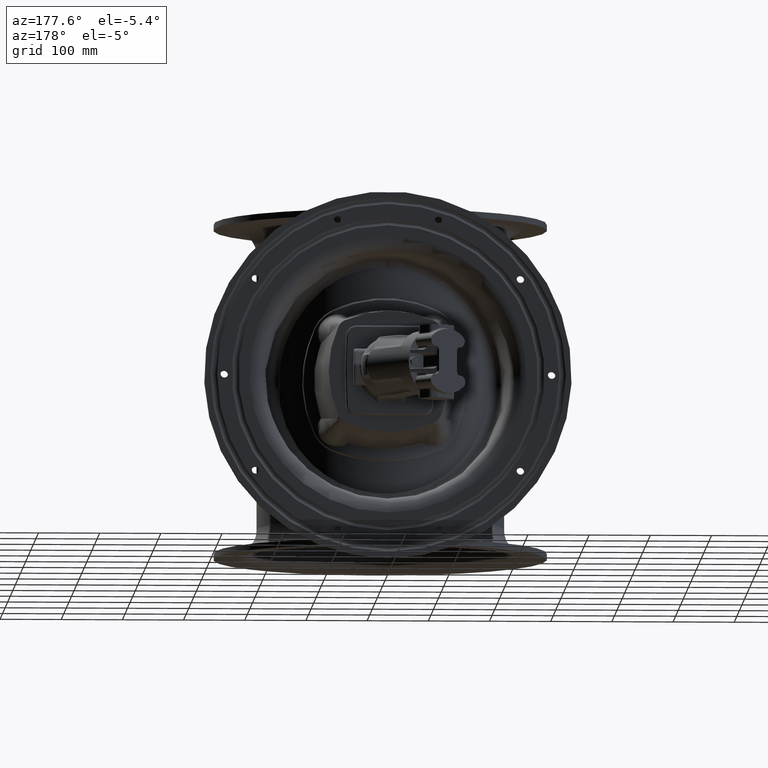
[diagram: clean part render]
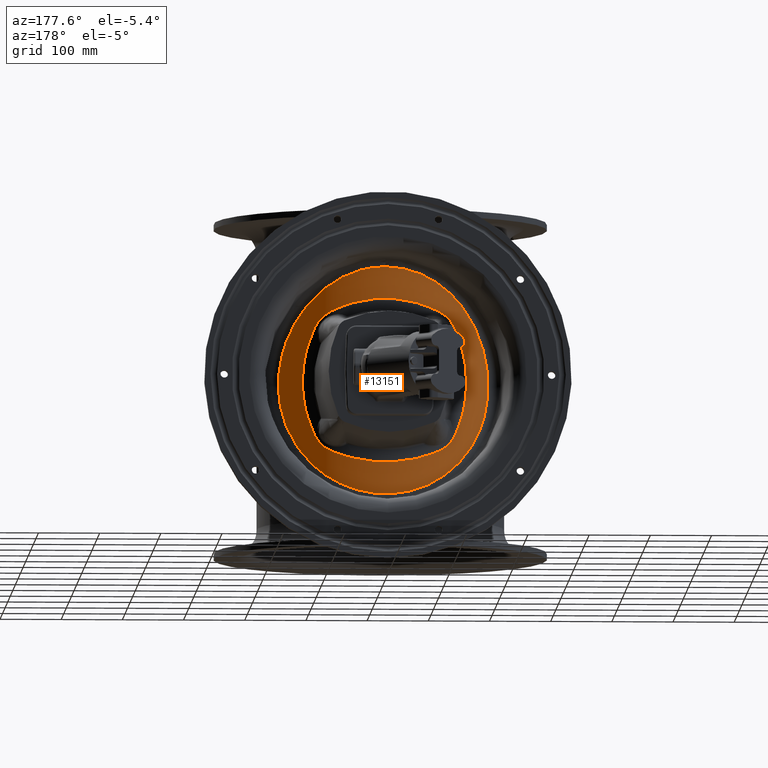
[diagram: same view with one face highlighted and labeled with its STEP entity id]
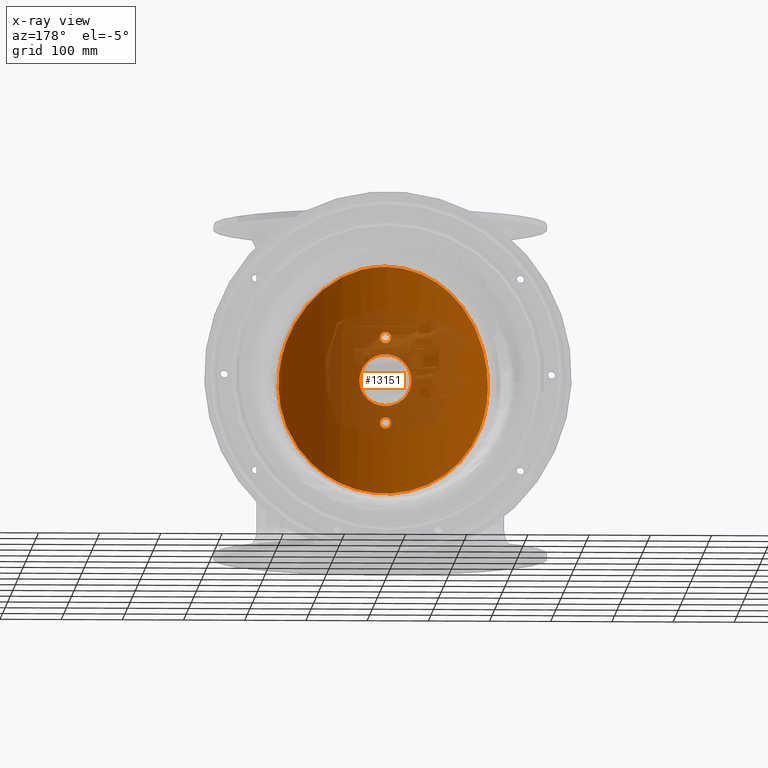
[diagram: x-ray of the same camera — body ghosted, the highlighted face saturated]
A machine part, auxiliary view. The second image highlights one B-rep face of the part: STEP entity #13151.
The next image is the same camera in x-ray: the body ghosted, the highlighted face saturated — about 34% of this face is hidden behind the body in this view.
In plain terms, the highlighted cylindrical surface (partial cylindrical patch) has radius 207 mm, axis along (-0, 0, -1).
Its self-contained STEP definition (entity closure, byte-faithful):
#753=CYLINDRICAL_SURFACE('',#14260,207.);
#825=FACE_BOUND('',#3331,.T.);
#826=FACE_BOUND('',#3332,.T.);
#827=FACE_BOUND('',#3333,.T.);
#1645=B_SPLINE_CURVE_WITH_KNOTS('',3,(#55963,#55964,#55965,#55966,#55967,
#55968,#55969,#55970,#55971,#55972,#55973,#55974,#55975,#55976,#55977,#55978,
#55979,#55980,#55981,#55982,#55983,#55984,#55985,#55986,#55987,#55988,#55989,
#55990,#55991,#55992,#55993,#55994,#55995,#55996,#55997,#55998,#55999,#56000,
#56001,#56002,#56003,#56004,#56005,#56006,#56007,#56008,#56009,#56010,#56011,
#56012,#56013,#56014,#56015,#56016,#56017,#56018,#56019,#56020,#56021,#56022,
#56023,#56024,#56025,#56026,#56027,#56028,#56029,#56030,#56031,#56032,#56033,
#56034,#56035,#56036,#56037,#56038,#56039),.UNSPECIFIED.,.T.,.F.,(4,1,1,
1,1,1,1,1,1,1,1,1,1,1,1,1,1,1,1,1,1,1,1,1,1,1,1,1,1,1,1,1,1,1,1,1,1,1,1,
1,1,1,1,1,1,1,1,1,1,1,1,1,1,1,1,1,1,1,1,1,1,1,1,1,1,1,1,1,1,1,1,1,1,1,4),
(-183.789862350285,-180.507990159418,-179.41400234027,-177.226026701974,
-175.038051063678,-173.397069334956,-172.850075425382,-170.662099787086,
-168.47412414879,-166.833142420068,-166.286148510494,-164.341281276453,
-162.396414042412,-161.667088829647,-160.451546808371,-158.50667957433,
-156.561812340289,-155.103161914759,-154.616945106249,-153.158294680718,
-151.699644255187,-151.334981648805,-150.240993829657,-148.782343404126,
-145.865042553065,-145.500379946682,-144.406392127534,-142.947741702003,
-140.030440850942,-138.936453031794,-138.571790425412,-136.14070638286,
-135.16827276584,-133.709622340309,-131.278538297758,-130.306104680738,
-127.388803829677,-125.443936595636,-123.25596095734,-122.526635744574,
-119.609334893513,-116.692034042452,-114.504058404156,-113.774733191391,
-112.31608276586,-110.857432340329,-110.128107127564,-107.940131489268,
-105.022830638207,-102.105529787145,-100.282216755232,-99.188228936084,
-96.2709280850227,-95.7239341754488,-94.0829524467268,-92.4419707180048,
-91.8949768084308,-89.7070011701348,-87.5190255318389,-86.6985346674779,
-86.4250377126909,-85.3310498935429,-83.1430742552469,-81.5020925265249,
-80.9550986169509,-78.767122978655,-76.579147340359,-74.938165611637,-74.391171702063,
-72.2031960637671,-70.0152204254711,-68.9212326063231,-66.7332569680271,
-65.6392691488792,-61.2632266057103),.UNSPECIFIED.);
#1646=B_SPLINE_CURVE_WITH_KNOTS('',3,(#56045,#56046,#56047,#56048,#56049,
#56050,#56051,#56052,#56053,#56054,#56055,#56056,#56057,#56058,#56059,#56060,
#56061,#56062,#56063,#56064,#56065,#56066,#56067,#56068,#56069,#56070,#56071,
#56072,#56073,#56074,#56075,#56076,#56077,#56078),.UNSPECIFIED.,.T.,.F.,
(4,2,2,2,2,2,2,2,2,2,2,2,2,2,2,2,4),(-5.42502185536125,-5.08595796893677,
-4.7468940825123,-4.40783023701661,-4.06876639152093,-3.72970254602525,
-3.39063870052957,-3.05157481410509,-2.71251092768062,-2.37344704125615,
-2.03438315483167,-1.69531930933599,-1.35625546384031,-1.01719161834463,
-0.678127772848948,-0.339063886424474,0.),.UNSPECIFIED.);
#1647=B_SPLINE_CURVE_WITH_KNOTS('',3,(#56080,#56081,#56082,#56083,#56084,
#56085,#56086,#56087,#56088,#56089,#56090,#56091,#56092,#56093,#56094,#56095,
#56096,#56097,#56098,#56099,#56100,#56101,#56102,#56103,#56104,#56105,#56106,
#56107,#56108,#56109,#56110,#56111,#56112,#56113),.UNSPECIFIED.,.T.,.F.,
(4,2,2,2,2,2,2,2,2,2,2,2,2,2,2,2,4),(-5.42502185536125,-5.08595796893677,
-4.7468940825123,-4.40783023701661,-4.06876639152093,-3.72970254602525,
-3.39063870052957,-3.05157481410509,-2.71251092768062,-2.37344704125615,
-2.03438315483167,-1.69531930933599,-1.35625546384031,-1.01719161834463,
-0.678127772848948,-0.339063886424474,0.),.UNSPECIFIED.);
#1648=B_SPLINE_CURVE_WITH_KNOTS('',3,(#56115,#56116,#56117,#56118,#56119,
#56120,#56121,#56122,#56123,#56124,#56125,#56126,#56127,#56128,#56129,#56130,
#56131,#56132,#56133,#56134,#56135,#56136,#56137,#56138,#56139,#56140,#56141,
#56142,#56143,#56144,#56145,#56146,#56147,#56148,#56149,#56150,#56151,#56152,
#56153,#56154,#56155,#56156,#56157,#56158,#56159,#56160,#56161,#56162,#56163,
#56164,#56165,#56166,#56167,#56168,#56169,#56170,#56171,#56172,#56173,#56174,
#56175,#56176,#56177,#56178,#56179,#56180),.UNSPECIFIED.,.T.,.F.,(4,2,2,
2,2,2,2,2,2,2,2,2,2,2,2,2,2,2,2,2,2,2,2,2,2,2,2,2,2,2,2,2,4),(-25.6934622714119,
-24.8905165393412,-24.0875708072705,-23.2846250751998,-22.4816793431291,
-21.6787836832366,-20.875888023344,-20.0729923634515,-19.2700967035589,
-18.4672010436664,-17.6643053837738,-16.8614097238813,-16.0585140639887,
-15.255568331918,-14.4526225998473,-13.6496768677766,-12.8467311357059,
-12.0437854036352,-11.2408396715646,-10.4378939394939,-9.63494820742316,
-8.83205254753061,-8.02915688763807,-7.22626122774552,-6.42336556785297,
-5.62046990796042,-4.81757424806788,-4.01467858817533,-3.21178292828278,
-2.40883719621209,-1.60589146414139,-0.802945732070695,0.),
 .UNSPECIFIED.);
#2447=FACE_OUTER_BOUND('',#3330,.T.);
#3330=EDGE_LOOP('',(#11365));
#3331=EDGE_LOOP('',(#11366));
#3332=EDGE_LOOP('',(#11367));
#3333=EDGE_LOOP('',(#11368));
#5870=VERTEX_POINT('',#55880);
#5873=VERTEX_POINT('',#56044);
#5874=VERTEX_POINT('',#56079);
#5875=VERTEX_POINT('',#56114);
#7722=EDGE_CURVE('',#5870,#5870,#1645,.T.);
#7724=EDGE_CURVE('',#5873,#5873,#1646,.T.);
#7725=EDGE_CURVE('',#5874,#5874,#1647,.T.);
#7726=EDGE_CURVE('',#5875,#5875,#1648,.T.);
#11365=ORIENTED_EDGE('',*,*,#7722,.F.);
#11366=ORIENTED_EDGE('',*,*,#7724,.T.);
#11367=ORIENTED_EDGE('',*,*,#7725,.T.);
#11368=ORIENTED_EDGE('',*,*,#7726,.T.);
#13151=ADVANCED_FACE('',(#2447,#825,#826,#827),#753,.T.);
#14260=AXIS2_PLACEMENT_3D('',#56043,#16819,#16820);
#16819=DIRECTION('center_axis',(-3.12250225675821E-16,2.4995738599939E-16,
-1.));
#16820=DIRECTION('ref_axis',(-4.17516537684347E-17,1.,2.4995738599939E-16));
#55880=CARTESIAN_POINT('',(4.0224161918184,110.00673804142,186.102400270656));
#55963=CARTESIAN_POINT('Ctrl Pts',(4.0224165284216,110.007573262003,186.102400377492));
#55964=CARTESIAN_POINT('Ctrl Pts',(-6.32604251172537,110.012385134042,186.109490105105));
#55965=CARTESIAN_POINT('Ctrl Pts',(-20.1340109155538,108.971983298553,184.759599117751));
#55966=CARTESIAN_POINT('Ctrl Pts',(-40.0802820961297,105.475179817484,180.181597701004));
#55967=CARTESIAN_POINT('Ctrl Pts',(-56.2013248258171,101.416852400042,174.831114358129));
#55968=CARTESIAN_POINT('Ctrl Pts',(-72.8682464590129,95.4808825197108,166.881804333555));
#55969=CARTESIAN_POINT('Ctrl Pts',(-84.0433715473066,90.4745997747385,160.040526733479));
#55970=CARTESIAN_POINT('Ctrl Pts',(-94.6858026157521,85.1513561997405,152.659173028407));
#55971=CARTESIAN_POINT('Ctrl Pts',(-106.010929702443,78.6902163655095,143.536807153365));
#55972=CARTESIAN_POINT('Ctrl Pts',(-118.439955589605,70.180768080616,131.016588218477));
#55973=CARTESIAN_POINT('Ctrl Pts',(-126.548192018502,63.7958573199084,121.146459386261));
#55974=CARTESIAN_POINT('Ctrl Pts',(-133.676336174221,57.7595711109299,111.472619589213));
#55975=CARTESIAN_POINT('Ctrl Pts',(-140.702609786857,51.2922472975345,100.652950091003));
#55976=CARTESIAN_POINT('Ctrl Pts',(-147.075743469184,44.6972372038763,88.5533268097693));
#55977=CARTESIAN_POINT('Ctrl Pts',(-151.841539663016,39.4021616613449,77.9274276494077));
#55978=CARTESIAN_POINT('Ctrl Pts',(-156.164759008194,34.3458222552748,66.99130819298));
#55979=CARTESIAN_POINT('Ctrl Pts',(-160.869851423268,28.388478201804,51.9431479435619));
#55980=CARTESIAN_POINT('Ctrl Pts',(-164.459894402138,23.4722827194567,35.2371650157748));
#55981=CARTESIAN_POINT('Ctrl Pts',(-166.108458049782,21.1080453942121,22.5959872248299));
#55982=CARTESIAN_POINT('Ctrl Pts',(-167.038645718237,19.7568512323813,11.3686973803495));
#55983=CARTESIAN_POINT('Ctrl Pts',(-167.442621296914,19.1595858478805,0.0199647011556278));
#55984=CARTESIAN_POINT('Ctrl Pts',(-167.056317273498,19.7305221400587,-10.9222541376921));
#55985=CARTESIAN_POINT('Ctrl Pts',(-166.290315568963,20.8445361491775,-20.5555983181781));
#55986=CARTESIAN_POINT('Ctrl Pts',(-165.193122779023,22.4231950159818,-30.0766497023872));
#55987=CARTESIAN_POINT('Ctrl Pts',(-162.097635931742,26.7515662347246,-47.4921014483732));
#55988=CARTESIAN_POINT('Ctrl Pts',(-157.953538271203,32.1581556923922,-61.8241698000337));
#55989=CARTESIAN_POINT('Ctrl Pts',(-153.306615376738,37.6942145818503,-74.2834933594923));
#55990=CARTESIAN_POINT('Ctrl Pts',(-149.966878337683,41.5378260004362,-82.3868645211918));
#55991=CARTESIAN_POINT('Ctrl Pts',(-142.876060213148,49.1723891469854,-97.0459845878739));
#55992=CARTESIAN_POINT('Ctrl Pts',(-134.414207880831,57.2326993866282,-110.732570434365));
#55993=CARTESIAN_POINT('Ctrl Pts',(-126.69510887119,63.6432719086797,-120.901276449434));
#55994=CARTESIAN_POINT('Ctrl Pts',(-119.524653127709,69.3020702057684,-129.679401846483));
#55995=CARTESIAN_POINT('Ctrl Pts',(-112.061109038304,74.6516926276183,-137.651994025593));
#55996=CARTESIAN_POINT('Ctrl Pts',(-101.481461001043,81.2612403116373,-147.182889642459));
#55997=CARTESIAN_POINT('Ctrl Pts',(-90.2257014995973,87.5976829859991,-156.121532145824));
#55998=CARTESIAN_POINT('Ctrl Pts',(-77.9960729483707,93.315401597678,-163.95961545583));
#55999=CARTESIAN_POINT('Ctrl Pts',(-61.0512161415954,99.8147092612429,-172.724471816137));
#56000=CARTESIAN_POINT('Ctrl Pts',(-44.2988425744459,104.736192753559,-179.239143530399));
#56001=CARTESIAN_POINT('Ctrl Pts',(-22.8561718535026,108.573589631185,-184.261149843074));
#56002=CARTESIAN_POINT('Ctrl Pts',(-7.59779743737779,109.853235536573,-185.92502318711));
#56003=CARTESIAN_POINT('Ctrl Pts',(10.7914025452992,110.160889568586,-186.324769763917));
#56004=CARTESIAN_POINT('Ctrl Pts',(31.4847098326652,108.768284717404,-184.517152672549));
#56005=CARTESIAN_POINT('Ctrl Pts',(55.7077355505244,103.864286338373,-178.098487259672));
#56006=CARTESIAN_POINT('Ctrl Pts',(72.235002666567,98.5485568041008,-171.021508322575));
#56007=CARTESIAN_POINT('Ctrl Pts',(83.9108709223713,93.9944676935401,-164.870181648617));
#56008=CARTESIAN_POINT('Ctrl Pts',(93.2358082967724,89.8650709465221,-159.232359076921));
#56009=CARTESIAN_POINT('Ctrl Pts',(102.049469063887,85.3281222099376,-152.92241352319));
#56010=CARTESIAN_POINT('Ctrl Pts',(112.118969753239,79.5996672902062,-144.817684684591));
#56011=CARTESIAN_POINT('Ctrl Pts',(124.621676831026,71.5122788720713,-133.090999073236));
#56012=CARTESIAN_POINT('Ctrl Pts',(139.439461765715,59.8669317845629,-115.208156488897));
#56013=CARTESIAN_POINT('Ctrl Pts',(151.271076395006,48.5991225177312,-96.0684441957009));
#56014=CARTESIAN_POINT('Ctrl Pts',(158.694460698409,40.5061493717974,-80.3633452782445));
#56015=CARTESIAN_POINT('Ctrl Pts',(165.126452098518,32.9673032217986,-63.9691902748969));
#56016=CARTESIAN_POINT('Ctrl Pts',(169.082557148275,27.8059658393071,-50.282119531139));
#56017=CARTESIAN_POINT('Ctrl Pts',(172.293426459773,23.4040950431469,-34.2633353233298));
#56018=CARTESIAN_POINT('Ctrl Pts',(174.117294664652,20.8050607424317,-21.8741111729169));
#56019=CARTESIAN_POINT('Ctrl Pts',(174.963944792551,19.5612370540617,-9.18114844005462));
#56020=CARTESIAN_POINT('Ctrl Pts',(175.162547527765,19.266800903495,5.41862494284457));
#56021=CARTESIAN_POINT('Ctrl Pts',(174.28772204351,20.5666894890753,21.8249976648889));
#56022=CARTESIAN_POINT('Ctrl Pts',(171.605394907514,24.3841261276658,38.5332024169009));
#56023=CARTESIAN_POINT('Ctrl Pts',(169.226302230867,27.5722827987922,48.6945987452149));
#56024=CARTESIAN_POINT('Ctrl Pts',(167.486516391118,29.852591655361,55.3457095619295));
#56025=CARTESIAN_POINT('Ctrl Pts',(164.355759663599,33.8523455901959,65.9104886469082));
#56026=CARTESIAN_POINT('Ctrl Pts',(159.005255969483,40.2198789810066,79.8935838513798));
#56027=CARTESIAN_POINT('Ctrl Pts',(153.281027553682,46.3559381123048,91.6062242182561));
#56028=CARTESIAN_POINT('Ctrl Pts',(147.010604059193,52.6502936673865,102.919707165201));
#56029=CARTESIAN_POINT('Ctrl Pts',(139.267104288406,59.8367493073025,114.986254931773));
#56030=CARTESIAN_POINT('Ctrl Pts',(128.35093324617,68.6104689317393,128.637720541794));
#56031=CARTESIAN_POINT('Ctrl Pts',(119.461305737736,74.8174265318445,137.838638024432));
#56032=CARTESIAN_POINT('Ctrl Pts',(110.056332493333,80.8260457049505,146.551817505603));
#56033=CARTESIAN_POINT('Ctrl Pts',(98.7931015601091,87.258517431693,155.634839265762));
#56034=CARTESIAN_POINT('Ctrl Pts',(84.9932123152571,93.6386755069081,164.37512140766));
#56035=CARTESIAN_POINT('Ctrl Pts',(70.2316027428183,99.2710546730763,171.966728363719));
#56036=CARTESIAN_POINT('Ctrl Pts',(57.8285120447435,103.046201024236,176.980928365641));
#56037=CARTESIAN_POINT('Ctrl Pts',(35.0394925293079,108.233234489744,183.80591318674));
#56038=CARTESIAN_POINT('Ctrl Pts',(17.8210338501805,110.001157622682,186.092947262467));
#56039=CARTESIAN_POINT('Ctrl Pts',(4.0224165284216,110.007573262003,186.102400377492));
#56043=CARTESIAN_POINT('Origin',(3.89657678097515,-96.9938597725139,-5.4166496496217));
#56044=CARTESIAN_POINT('',(12.8965767809752,109.810395502855,69.9885562203831));
#56045=CARTESIAN_POINT('Ctrl Pts',(12.8965767809752,109.810395502855,69.9885562203831));
#56046=CARTESIAN_POINT('Ctrl Pts',(12.8965767809752,109.810395502855,71.1187691751313));
#56047=CARTESIAN_POINT('Ctrl Pts',(12.6706742981768,109.820613794501,72.3242189173106));
#56048=CARTESIAN_POINT('Ctrl Pts',(11.7521470335531,109.857539255573,74.541590778144));
#56049=CARTESIAN_POINT('Ctrl Pts',(11.0595301020676,109.883715359163,75.5535249606486));
#56050=CARTESIAN_POINT('Ctrl Pts',(9.46154561768794,109.932866665458,77.1515094450282));
#56051=CARTESIAN_POINT('Ctrl Pts',(8.44961139047015,109.959031970773,77.8441264470768));
#56052=CARTESIAN_POINT('Ctrl Pts',(6.23223939207273,109.99593274206,78.7626537775929));
#56053=CARTESIAN_POINT('Ctrl Pts',(5.02678959929411,110.006140227486,78.9885562203831));
#56054=CARTESIAN_POINT('Ctrl Pts',(2.76636396265623,110.006140227486,78.9885562203831));
#56055=CARTESIAN_POINT('Ctrl Pts',(1.5609141698776,109.99593274206,78.762653777593));
#56056=CARTESIAN_POINT('Ctrl Pts',(-0.656457828519809,109.959031970773,
77.8441264470768));
#56057=CARTESIAN_POINT('Ctrl Pts',(-1.6683920557376,109.932866665458,77.1515094450282));
#56058=CARTESIAN_POINT('Ctrl Pts',(-3.26637654011721,109.883715359163,75.5535249606486));
#56059=CARTESIAN_POINT('Ctrl Pts',(-3.9589934716028,109.857539255573,74.541590778144));
#56060=CARTESIAN_POINT('Ctrl Pts',(-4.87752073622649,109.8206137945,72.3242189173106));
#56061=CARTESIAN_POINT('Ctrl Pts',(-5.10342321902483,109.810395502855,71.1187691751313));
#56062=CARTESIAN_POINT('Ctrl Pts',(-5.10342321902483,109.810395502855,68.8583432656348));
#56063=CARTESIAN_POINT('Ctrl Pts',(-4.87752073622649,109.820613794501,67.6528935234555));
#56064=CARTESIAN_POINT('Ctrl Pts',(-3.95899347160279,109.857539255573,65.4355216626221));
#56065=CARTESIAN_POINT('Ctrl Pts',(-3.2663765401172,109.883715359164,64.4235874801176));
#56066=CARTESIAN_POINT('Ctrl Pts',(-1.66839205573759,109.932866665458,62.825602995738));
#56067=CARTESIAN_POINT('Ctrl Pts',(-0.656457828519807,109.959031970773,
62.1329859936894));
#56068=CARTESIAN_POINT('Ctrl Pts',(1.5609141698776,109.99593274206,61.2144586631732));
#56069=CARTESIAN_POINT('Ctrl Pts',(2.76636396265623,110.006140227486,60.9885562203831));
#56070=CARTESIAN_POINT('Ctrl Pts',(5.02678959929411,110.006140227486,60.9885562203831));
#56071=CARTESIAN_POINT('Ctrl Pts',(6.23223939207272,109.99593274206,61.2144586631732));
#56072=CARTESIAN_POINT('Ctrl Pts',(8.44961139047014,109.959031970773,62.1329859936894));
#56073=CARTESIAN_POINT('Ctrl Pts',(9.46154561768792,109.932866665458,62.825602995738));
#56074=CARTESIAN_POINT('Ctrl Pts',(11.0595301020675,109.883715359164,64.4235874801176));
#56075=CARTESIAN_POINT('Ctrl Pts',(11.7521470335531,109.857539255573,65.4355216626221));
#56076=CARTESIAN_POINT('Ctrl Pts',(12.6706742981768,109.820613794501,67.6528935234555));
#56077=CARTESIAN_POINT('Ctrl Pts',(12.8965767809752,109.810395502855,68.8583432656348));
#56078=CARTESIAN_POINT('Ctrl Pts',(12.8965767809752,109.810395502855,69.9885562203831));
#56079=CARTESIAN_POINT('',(12.8965767809751,109.810395502855,-70.0114437796169));
#56080=CARTESIAN_POINT('Ctrl Pts',(12.8965767809751,109.810395502855,-70.0114437796169));
#56081=CARTESIAN_POINT('Ctrl Pts',(12.8965767809751,109.810395502855,-68.8812308248687));
#56082=CARTESIAN_POINT('Ctrl Pts',(12.6706742981768,109.820613794501,-67.6757810826894));
#56083=CARTESIAN_POINT('Ctrl Pts',(11.7521470335531,109.857539255573,-65.458409221856));
#56084=CARTESIAN_POINT('Ctrl Pts',(11.0595301020675,109.883715359164,-64.4464750393514));
#56085=CARTESIAN_POINT('Ctrl Pts',(9.46154561768789,109.932866665458,-62.8484905549718));
#56086=CARTESIAN_POINT('Ctrl Pts',(8.4496113904701,109.959031970773,-62.1558735529232));
#56087=CARTESIAN_POINT('Ctrl Pts',(6.23223939207269,109.99593274206,-61.237346222407));
#56088=CARTESIAN_POINT('Ctrl Pts',(5.02678959929407,110.006140227486,-61.0114437796169));
#56089=CARTESIAN_POINT('Ctrl Pts',(2.76636396265619,110.006140227486,-61.0114437796169));
#56090=CARTESIAN_POINT('Ctrl Pts',(1.56091416987756,109.99593274206,-61.2373462224071));
#56091=CARTESIAN_POINT('Ctrl Pts',(-0.656457828519857,109.959031970773,
-62.1558735529232));
#56092=CARTESIAN_POINT('Ctrl Pts',(-1.66839205573764,109.932866665458,-62.8484905549718));
#56093=CARTESIAN_POINT('Ctrl Pts',(-3.26637654011725,109.883715359164,-64.4464750393514));
#56094=CARTESIAN_POINT('Ctrl Pts',(-3.95899347160284,109.857539255573,-65.458409221856));
#56095=CARTESIAN_POINT('Ctrl Pts',(-4.87752073622654,109.820613794501,-67.6757810826894));
#56096=CARTESIAN_POINT('Ctrl Pts',(-5.10342321902487,109.810395502855,-68.8812308248687));
#56097=CARTESIAN_POINT('Ctrl Pts',(-5.10342321902487,109.810395502855,-71.1416567343652));
#56098=CARTESIAN_POINT('Ctrl Pts',(-4.87752073622653,109.820613794501,-72.3471064765445));
#56099=CARTESIAN_POINT('Ctrl Pts',(-3.95899347160284,109.857539255573,-74.5644783373779));
#56100=CARTESIAN_POINT('Ctrl Pts',(-3.26637654011725,109.883715359164,-75.5764125198824));
#56101=CARTESIAN_POINT('Ctrl Pts',(-1.66839205573763,109.932866665458,-77.174397004262));
#56102=CARTESIAN_POINT('Ctrl Pts',(-0.656457828519851,109.959031970774,
-77.8670140063106));
#56103=CARTESIAN_POINT('Ctrl Pts',(1.56091416987756,109.99593274206,-78.7855413368268));
#56104=CARTESIAN_POINT('Ctrl Pts',(2.76636396265619,110.006140227486,-79.0114437796169));
#56105=CARTESIAN_POINT('Ctrl Pts',(5.02678959929406,110.006140227486,-79.0114437796169));
#56106=CARTESIAN_POINT('Ctrl Pts',(6.2322393920727,109.99593274206,-78.7855413368268));
#56107=CARTESIAN_POINT('Ctrl Pts',(8.44961139047011,109.959031970774,-77.8670140063106));
#56108=CARTESIAN_POINT('Ctrl Pts',(9.46154561768788,109.932866665458,-77.174397004262));
#56109=CARTESIAN_POINT('Ctrl Pts',(11.0595301020675,109.883715359164,-75.5764125198824));
#56110=CARTESIAN_POINT('Ctrl Pts',(11.7521470335531,109.857539255573,-74.5644783373779));
#56111=CARTESIAN_POINT('Ctrl Pts',(12.6706742981768,109.820613794501,-72.3471064765445));
#56112=CARTESIAN_POINT('Ctrl Pts',(12.8965767809751,109.810395502855,-71.1416567343652));
#56113=CARTESIAN_POINT('Ctrl Pts',(12.8965767809751,109.810395502855,-70.0114437796169));
#56114=CARTESIAN_POINT('',(46.3965767809751,105.596243638289,-0.0114437796169424));
#56115=CARTESIAN_POINT('Ctrl Pts',(46.3965767809751,105.59624363829,-0.0114437796169425));
#56116=CARTESIAN_POINT('Ctrl Pts',(46.3965767809751,105.59624363829,2.66504199395203));
#56117=CARTESIAN_POINT('Ctrl Pts',(46.1396692234171,105.650717504117,5.43042459235758));
#56118=CARTESIAN_POINT('Ctrl Pts',(45.0603404199587,105.872717370327,10.9264423829667));
#56119=CARTESIAN_POINT('Ctrl Pts',(44.2381779009865,106.040072040618,13.6571353009253));
#56120=CARTESIAN_POINT('Ctrl Pts',(42.067215757131,106.459389214785,18.8903341394484));
#56121=CARTESIAN_POINT('Ctrl Pts',(40.7166899977148,106.711275947554,21.3971536704099));
#56122=CARTESIAN_POINT('Ctrl Pts',(37.5987259872364,107.250278931019,26.0310968256378));
#56123=CARTESIAN_POINT('Ctrl Pts',(35.8310706883453,107.536842166065,28.1581387138695));
#56124=CARTESIAN_POINT('Ctrl Pts',(32.0662766655302,108.089263603236,31.9229327366846));
#56125=CARTESIAN_POINT('Ctrl Pts',(29.9392892811008,108.374631060459,33.6905749977822));
#56126=CARTESIAN_POINT('Ctrl Pts',(25.3053117063061,108.909287289991,36.8085917042512));
#56127=CARTESIAN_POINT('Ctrl Pts',(22.7984033230246,109.15805179304,38.1591776027713));
#56128=CARTESIAN_POINT('Ctrl Pts',(17.5650312074931,109.571052643738,40.3302064751636));
#56129=CARTESIAN_POINT('Ctrl Pts',(14.8342564485385,109.735263999979,41.1523752946838));
#56130=CARTESIAN_POINT('Ctrl Pts',(9.33821665244357,109.952877355093,42.2316786524));
#56131=CARTESIAN_POINT('Ctrl Pts',(6.57289564728365,110.006140227486,42.4885562203831));
#56132=CARTESIAN_POINT('Ctrl Pts',(1.22025791466665,110.006140227486,42.4885562203831));
#56133=CARTESIAN_POINT('Ctrl Pts',(-1.54506309049327,109.952877355093,42.2316786524));
#56134=CARTESIAN_POINT('Ctrl Pts',(-7.04110288658823,109.735263999979,41.1523752946838));
#56135=CARTESIAN_POINT('Ctrl Pts',(-9.77187764554282,109.571052643738,40.3302064751636));
#56136=CARTESIAN_POINT('Ctrl Pts',(-15.0052497610743,109.15805179304,38.1591776027713));
#56137=CARTESIAN_POINT('Ctrl Pts',(-17.5121581443559,108.909287289991,36.8085917042512));
#56138=CARTESIAN_POINT('Ctrl Pts',(-22.1461357191505,108.374631060459,33.6905749977822));
#56139=CARTESIAN_POINT('Ctrl Pts',(-24.2731231035799,108.089263603236,31.9229327366846));
#56140=CARTESIAN_POINT('Ctrl Pts',(-28.0379171263949,107.536842166065,28.1581387138695));
#56141=CARTESIAN_POINT('Ctrl Pts',(-29.8055724252861,107.250278931018,26.0310968256378));
#56142=CARTESIAN_POINT('Ctrl Pts',(-32.9235364357645,106.711275947553,21.39715367041));
#56143=CARTESIAN_POINT('Ctrl Pts',(-34.2740621951806,106.459389214785,18.8903341394484));
#56144=CARTESIAN_POINT('Ctrl Pts',(-36.4450243390362,106.040072040618,13.6571353009253));
#56145=CARTESIAN_POINT('Ctrl Pts',(-37.2671868580084,105.872717370327,10.9264423829667));
#56146=CARTESIAN_POINT('Ctrl Pts',(-38.3465156614668,105.650717504117,5.43042459235762));
#56147=CARTESIAN_POINT('Ctrl Pts',(-38.6034232190249,105.59624363829,2.66504199395207));
#56148=CARTESIAN_POINT('Ctrl Pts',(-38.6034232190249,105.59624363829,-2.6879295531859));
#56149=CARTESIAN_POINT('Ctrl Pts',(-38.3465156614668,105.650717504117,-5.45331215159145));
#56150=CARTESIAN_POINT('Ctrl Pts',(-37.2671868580084,105.872717370327,-10.9493299422006));
#56151=CARTESIAN_POINT('Ctrl Pts',(-36.4450243390362,106.040072040618,-13.6800228601592));
#56152=CARTESIAN_POINT('Ctrl Pts',(-34.2740621951806,106.459389214785,-18.9132216986823));
#56153=CARTESIAN_POINT('Ctrl Pts',(-32.9235364357645,106.711275947553,-21.4200412296438));
#56154=CARTESIAN_POINT('Ctrl Pts',(-29.8055724252861,107.250278931018,-26.0539843848716));
#56155=CARTESIAN_POINT('Ctrl Pts',(-28.037917126395,107.536842166065,-28.1810262731034));
#56156=CARTESIAN_POINT('Ctrl Pts',(-24.2731231035799,108.089263603236,-31.9458202959184));
#56157=CARTESIAN_POINT('Ctrl Pts',(-22.1461357191505,108.374631060459,-33.713462557016));
#56158=CARTESIAN_POINT('Ctrl Pts',(-17.5121581443559,108.909287289991,-36.831479263485));
#56159=CARTESIAN_POINT('Ctrl Pts',(-15.0052497610743,109.15805179304,-38.1820651620052));
#56160=CARTESIAN_POINT('Ctrl Pts',(-9.77187764554283,109.571052643738,-40.3530940343975));
#56161=CARTESIAN_POINT('Ctrl Pts',(-7.04110288658823,109.735263999979,-41.1752628539176));
#56162=CARTESIAN_POINT('Ctrl Pts',(-1.54506309049327,109.952877355093,-42.2545662116339));
#56163=CARTESIAN_POINT('Ctrl Pts',(1.22025791466665,110.006140227486,-42.5114437796169));
#56164=CARTESIAN_POINT('Ctrl Pts',(6.57289564728363,110.006140227486,-42.5114437796169));
#56165=CARTESIAN_POINT('Ctrl Pts',(9.33821665244355,109.952877355093,-42.2545662116339));
#56166=CARTESIAN_POINT('Ctrl Pts',(14.8342564485385,109.735263999979,-41.1752628539176));
#56167=CARTESIAN_POINT('Ctrl Pts',(17.5650312074931,109.571052643738,-40.3530940343975));
#56168=CARTESIAN_POINT('Ctrl Pts',(22.7984033230246,109.15805179304,-38.1820651620052));
#56169=CARTESIAN_POINT('Ctrl Pts',(25.3053117063062,108.909287289991,-36.8314792634851));
#56170=CARTESIAN_POINT('Ctrl Pts',(29.9392892811008,108.374631060459,-33.713462557016));
#56171=CARTESIAN_POINT('Ctrl Pts',(32.0662766655302,108.089263603236,-31.9458202959184));
#56172=CARTESIAN_POINT('Ctrl Pts',(35.8310706883452,107.536842166065,-28.1810262731034));
#56173=CARTESIAN_POINT('Ctrl Pts',(37.5987259872364,107.250278931018,-26.0539843848717));
#56174=CARTESIAN_POINT('Ctrl Pts',(40.7166899977148,106.711275947553,-21.4200412296438));
#56175=CARTESIAN_POINT('Ctrl Pts',(42.0672157571309,106.459389214785,-18.9132216986823));
#56176=CARTESIAN_POINT('Ctrl Pts',(44.2381779009865,106.040072040618,-13.6800228601592));
#56177=CARTESIAN_POINT('Ctrl Pts',(45.0603404199587,105.872717370327,-10.9493299422006));
#56178=CARTESIAN_POINT('Ctrl Pts',(46.1396692234171,105.650717504117,-5.45331215159148));
#56179=CARTESIAN_POINT('Ctrl Pts',(46.3965767809751,105.59624363829,-2.68792955318593));
#56180=CARTESIAN_POINT('Ctrl Pts',(46.3965767809751,105.59624363829,-0.011443779616942));